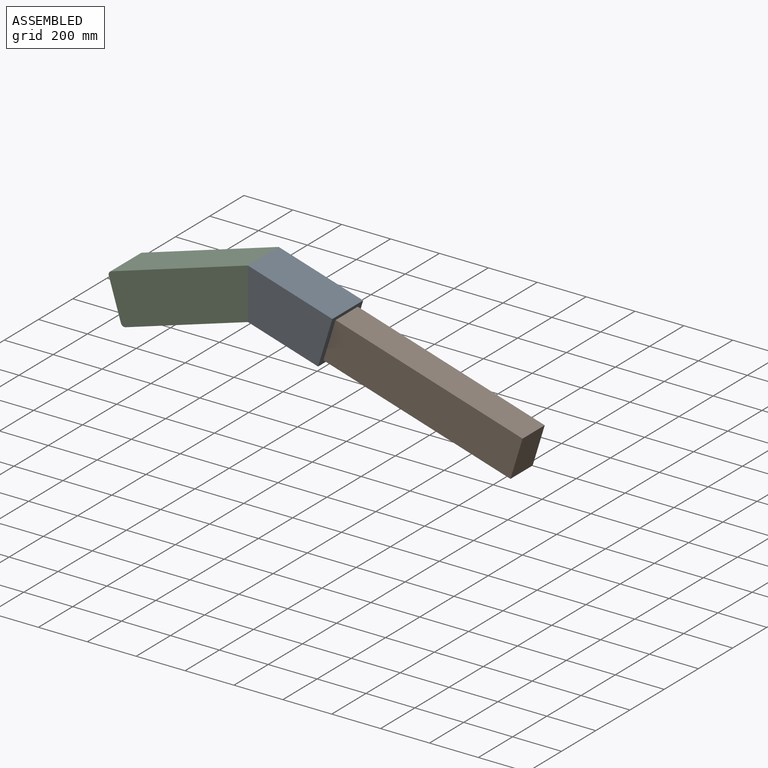
[diagram: assembled view]
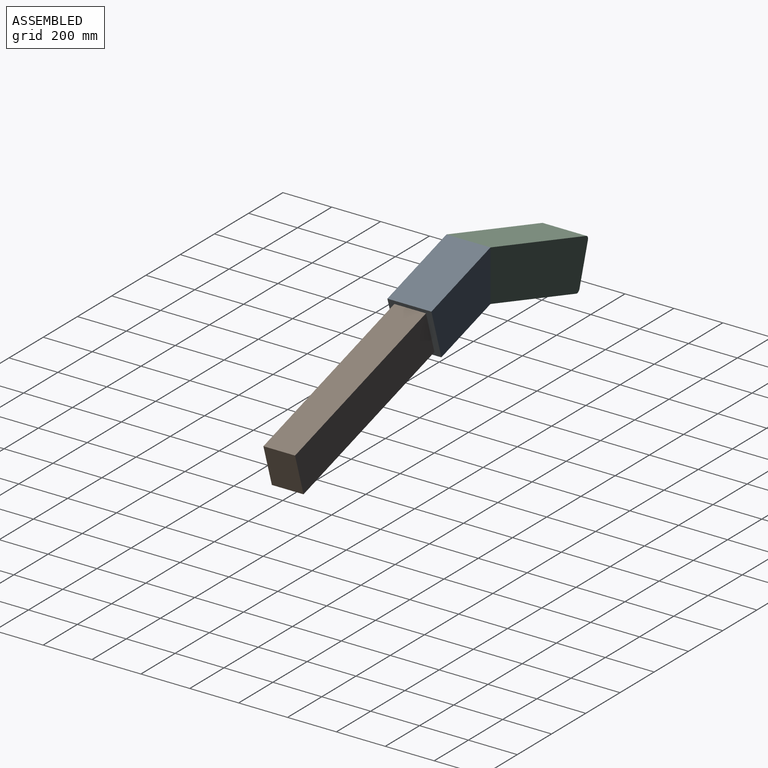
[diagram: assembled view, second angle]
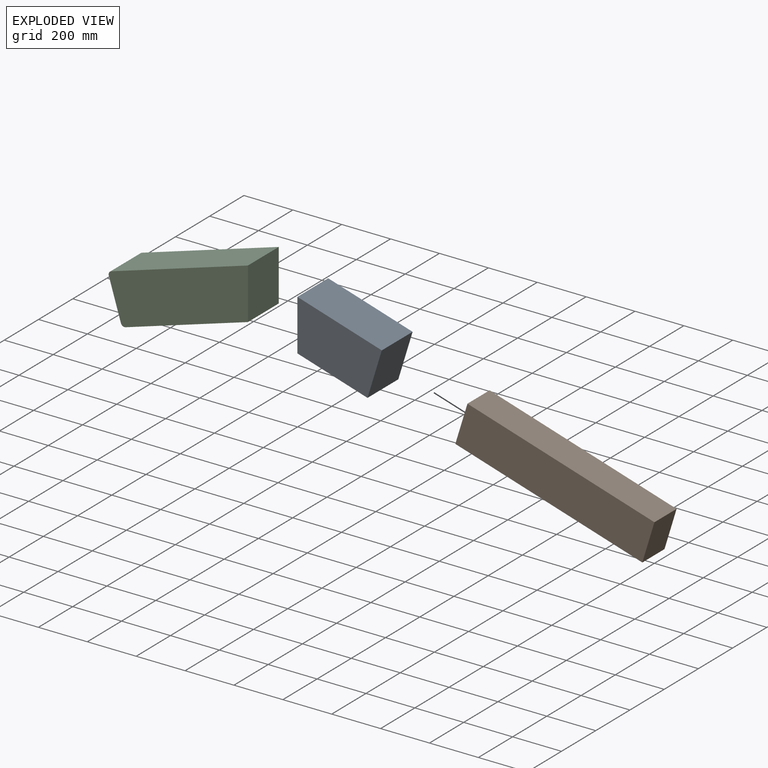
[diagram: exploded view]
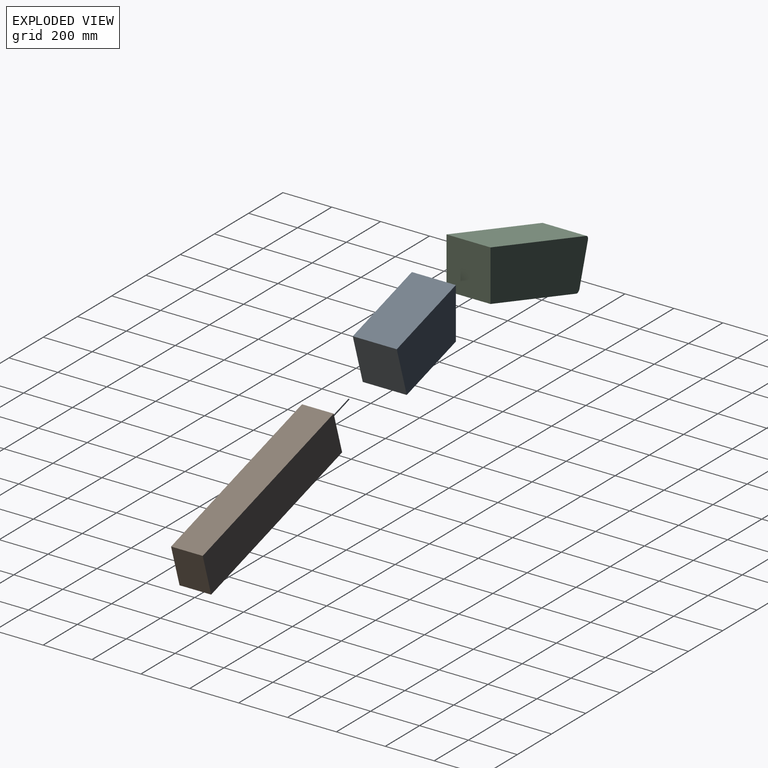
[diagram: exploded view, second angle]
ASSEMBLY  parts=3 mates=4
PART A: 6 faces, bbox 361.1x180x200 mm
  f0: plane 361.15x180mm, normal (0,0,1), area 65006.3mm2, adj f1,f3,f4,f5
  f1: plane 200x180mm, normal (-1,0,0), area 36000mm2, adj f0,f2,f3,f4
  f2: plane 300x180mm, normal (0,0,-1), area 54000mm2, adj f1,f3,f4,f5
  f3: plane 361.15x200mm, normal (0,1,0), area 66114.6mm2, adj f0,f1,f2,f5
  f4: plane 361.15x200mm, normal (0,-1,0), area 66114.6mm2, adj f0,f1,f2,f5
  f5: plane 200x180mm, normal (0.96,0,-0.29), area 37644.9mm2, adj f0,f2,f3,f4
PART B: 6 faces, bbox 129.5x800x169.5 mm
  f0: plane 800x169.5mm, normal (1,0,0), area 135600mm2, adj f1,f3,f4,f5
  f1: plane 800x129.5mm, normal (0,0,1), area 103600mm2, adj f0,f2,f4,f5
  f2: plane 800x169.5mm, normal (-1,0,0), area 135600mm2, adj f1,f3,f4,f5
  f3: plane 800x129.5mm, normal (0,0,-1), area 103600mm2, adj f0,f2,f4,f5
  f4: plane 169.5x129.5mm, normal (0,1,0), area 21950.2mm2, adj f0,f1,f2,f3
  f5: plane 169.5x129.5mm, normal (0,-1,0), area 21950.2mm2, adj f0,f1,f2,f3
PART C: 8 faces, bbox 600x180x200 mm
  f0: plane 523.85x180mm, normal (0,0,-1), area 94293.7mm2, adj f1,f2,f5,f7
  f1: plane 600x200mm, normal (0,-1,0), area 113788.8mm2, adj f0,f3,f4,f5,f6,f7
  f2: plane 600x200mm, normal (0,1,0), area 113788.8mm2, adj f0,f3,f4,f5,f6,f7
  f3: plane 180x170mm, normal (1,0,0), area 30600mm2, adj f1,f2,f6,f7
  f4: plane 585x180mm, normal (0,0,1), area 105300mm2, adj f1,f2,f5,f6
  f5: plane 200x180mm, normal (-0.96,0,-0.29), area 37644.9mm2, adj f0,f1,f2,f4
  f6: cylinder r=15mm len=180mm, axis (0,-1,0), area 4241.2mm2, adj f1,f2,f3,f4
  f7: cylinder r=15mm len=180mm, axis (0,1,0), area 4241.2mm2, adj f0,f1,f2,f3
PLACE A rot(axis=(-0.15,0,-0.99),180deg) t=(172.68,90,-52.79)mm
PLACE B rot(axis=(0.7,-0.7,-0.11),168deg) t=(1081.17,0,-330.55)mm
PLACE C rot(axis=(0.15,0,-0.99),180deg) t=(-257.65,90,-78.77)mm
MATE planar B.f4 <-> A.f1  axis (-0.96,0,0.29) through (316.13,0,-96.65)mm
MATE planar C.f5 <-> A.f5  axis (1,0,0) through (0,0,0)mm
MATE fastened C.f5 <-> A.f5  axis (1,0,0) through (0,0,0)mm
MATE fastened B.f4 <-> A.f1  axis (-0.96,0,0.29) through (316.13,0,-96.65)mm
